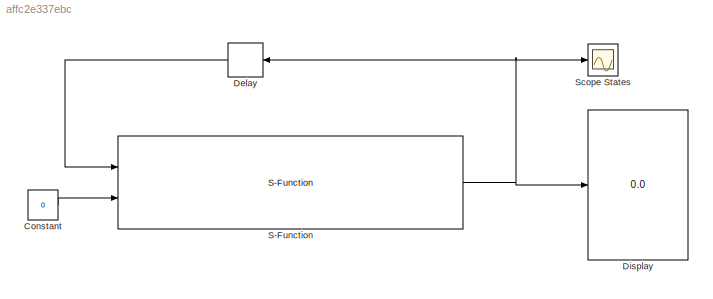
MODEL slx_affc2e337ebc
KIND model
BLOCK [Constant] Constant
  Value = 0
BLOCK [Delay] Delay
  DelayLength = 1
  InitialCondition = x0 + [0, 1, 0, 0]'
  InputPortMap = u0
  Ports = [1, 1]
  SampleTime = 1/20
BLOCK [Display] Display
  Decimation = 1
  Ports = [1]
BLOCK [S-Function] S-Function
  EnableBusSupport = off
  FunctionName = acados_sim_solver_sfunction_pendulum
  Ports = [2, 1]
  SFunctionDeploymentMode = off
BLOCK [Scope] Scope States
  DataFormat = StructureWithTime
  Decimation = 1
  Floating = off
  Grid = on
  LimitDataPoints = off
  MaxDataPoints = 5000
  NumInputPorts = 1
  Ports = [1]
  SampleInput = off
  SampleTime = -1
  SaveName = ScopeData
  SaveToWorkspace = off
  ShowLegends = off
  TickLabels = OneTimeTick
  TimeRange = auto
  YMax = 5.09937
  YMin = -4.47908
  ZoomMode = on
LINE Constant:1 -> S-Function:2
LINE Delay:1 -> S-Function:1
NET S-Function:1 -> Delay:1, Display:1, Scope States:1
note: NET lines group one-source signal fan-out (src -> all destinations, sorted); 1:1 wires keep LINE
